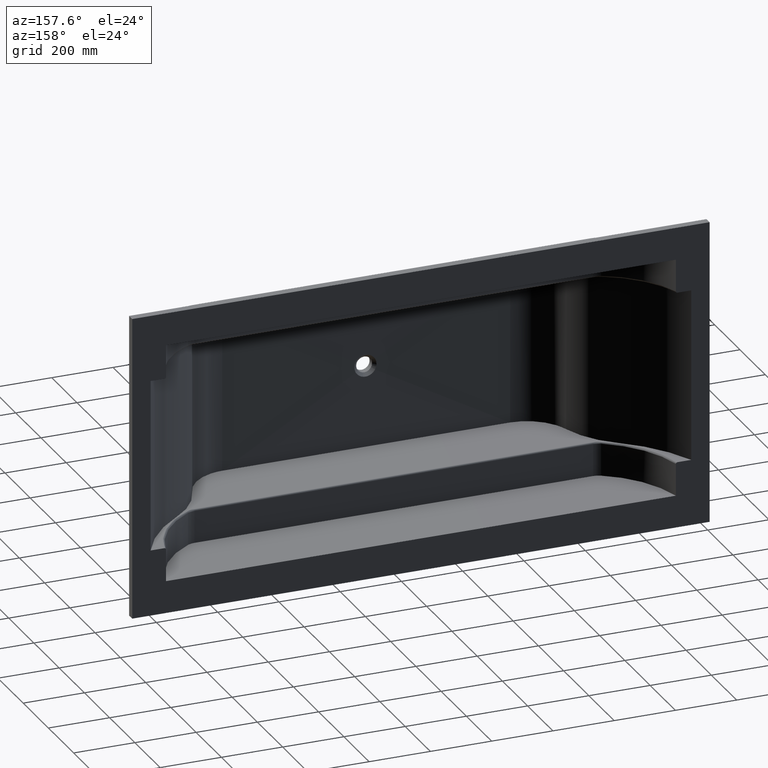
[diagram: clean part render]
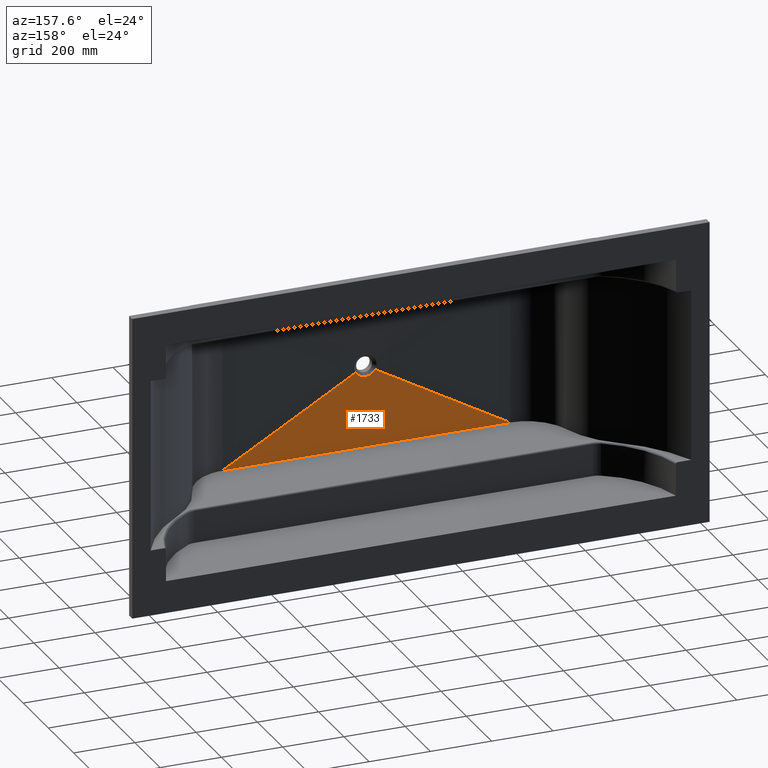
[diagram: same view with one face highlighted and labeled with its STEP entity id]
A machine part, auxiliary view. The second image highlights one B-rep face of the part: STEP entity #1733.
In plain terms, the highlighted planar face has unit normal (0, -0.9997, -0.0226).
Its self-contained STEP definition (entity closure, byte-faithful):
#77 = ORIENTED_EDGE ( 'NONE', *, *, #3188, .F. ) ;
#111 = DIRECTION ( 'NONE',  ( -0.8710262766823158000, -0.01111948438317850900, 0.4911105602570505200 ) ) ;
#188 = CARTESIAN_POINT ( 'NONE',  ( 1412.500000000005700, -419.0000000000000600, -760.0000000000000000 ) ) ;
#203 = CARTESIAN_POINT ( 'NONE',  ( 933.8095599632381400, -424.2079209995181900, -529.9834891879459100 ) ) ;
#386 = ORIENTED_EDGE ( 'NONE', *, *, #1924, .F. ) ;
#676 = CARTESIAN_POINT ( 'NONE',  ( 956.1925158644544400, -424.2447592089435500, -528.3564682716579500 ) ) ;
#922 = VERTEX_POINT ( 'NONE', #1062 ) ;
#928 = LINE ( 'NONE', #2775, #4196 ) ;
#990 = CARTESIAN_POINT ( 'NONE',  ( 915.9168369584053800, -424.4464645930708000, -519.4478138060341100 ) ) ;
#1008 = CARTESIAN_POINT ( 'NONE',  ( 965.2339255861430700, -424.3652985051307400, -523.0326493567307600 ) ) ;
#1051 = CARTESIAN_POINT ( 'NONE',  ( 917.1435332895891900, -424.4179712181139600, -520.7062711999666400 ) ) ;
#1062 = CARTESIAN_POINT ( 'NONE',  ( 973.9608987646641900, -424.5983715051320400, -512.7385918566710600 ) ) ;
#1135 = AXIS2_PLACEMENT_3D ( 'NONE', #4588, #2371, #3691 ) ;
#1138 = DIRECTION ( 'NONE',  ( -0.8710262766823158000, 0.01111948438317850900, -0.4911105602570505200 ) ) ;
#1294 = ORIENTED_EDGE ( 'NONE', *, *, #5005, .F. ) ;
#1358 = CARTESIAN_POINT ( 'NONE',  ( 472.5000000000029600, -419.0000000000000600, -759.9999999999998900 ) ) ;
#1473 = EDGE_CURVE ( 'NONE', #5400, #922, #928, .T. ) ;
#1476 = CARTESIAN_POINT ( 'NONE',  ( 921.1618801141343100, -424.3411205569387300, -524.1005087352080000 ) ) ;
#1491 = CARTESIAN_POINT ( 'NONE',  ( 919.7660744138620400, -424.3652985051305100, -523.0326493567312100 ) ) ;
#1495 = EDGE_LOOP ( 'NONE', ( #3918, #386, #77, #1294 ) ) ;
#1626 = VECTOR ( 'NONE', #2232, 1000.000000000000000 ) ;
#1733 = ADVANCED_FACE ( 'NONE', ( #4389 ), #2831, .F. ) ;
#1800 = CARTESIAN_POINT ( 'NONE',  ( 60.00000000000243700, -419.0000000000000600, -760.0000000000000000 ) ) ;
#1924 = EDGE_CURVE ( 'NONE', #2126, #5400, #2804, .T. ) ;
#1942 = CARTESIAN_POINT ( 'NONE',  ( 946.0056533152287600, -424.1878484834904300, -530.8700253124980000 ) ) ;
#2049 = CARTESIAN_POINT ( 'NONE',  ( 930.4505192675050000, -424.2306371355655300, -528.9801931791900000 ) ) ;
#2102 = CARTESIAN_POINT ( 'NONE',  ( 913.3794994590314200, -424.5146655531867200, -516.4356047342510000 ) ) ;
#2126 = VERTEX_POINT ( 'NONE', #1358 ) ;
#2232 = DIRECTION ( 'NONE',  ( 1.000000000000000000, -0.0000000000000000000, -0.0000000000000000000 ) ) ;
#2356 = CARTESIAN_POINT ( 'NONE',  ( 935.5255239520701000, -424.1993272180071100, -530.3630478713457700 ) ) ;
#2371 = DIRECTION ( 'NONE',  ( 0.0000000000000000000, -0.9997437795323199600, -0.02263570821582612500 ) ) ;
#2422 = CARTESIAN_POINT ( 'NONE',  ( 951.1904400367665200, -424.2079209995181900, -529.9834891879459100 ) ) ;
#2775 = CARTESIAN_POINT ( 'NONE',  ( 822.7243432327842400, -426.5290509374537500, -427.4669169291216200 ) ) ;
#2796 = CARTESIAN_POINT ( 'NONE',  ( 944.2528375050765100, -424.1849636725574400, -530.9974377953758400 ) ) ;
#2804 = LINE ( 'NONE', #1800, #1626 ) ;
#2815 = CARTESIAN_POINT ( 'NONE',  ( 940.7471624949283800, -424.1849636725576700, -530.9974377953758400 ) ) ;
#2831 = PLANE ( 'NONE',  #1135 ) ;
#2834 = CARTESIAN_POINT ( 'NONE',  ( 963.8381198858703600, -424.3411205569387300, -524.1005087352077700 ) ) ;
#2914 = CARTESIAN_POINT ( 'NONE',  ( 925.6288471398368100, -424.2782351544196300, -526.8779473464578600 ) ) ;
#2986 = CARTESIAN_POINT ( 'NONE',  ( 960.9067153818431300, -424.2975886121851700, -526.0231696284863600 ) ) ;
#3188 = EDGE_CURVE ( 'NONE', #5047, #2126, #3482, .T. ) ;
#3398 = CARTESIAN_POINT ( 'NONE',  ( 967.8564667104154800, -424.4179712181139600, -520.7062711999664100 ) ) ;
#3482 = LINE ( 'NONE', #5469, #4646 ) ;
#3678 = CARTESIAN_POINT ( 'NONE',  ( 969.0831630415992800, -424.4464645930710300, -519.4478138060337600 ) ) ;
#3691 = DIRECTION ( 'NONE',  ( 0.0000000000000000000, 0.02263570821582612500, -0.9997437795323199600 ) ) ;
#3808 = CARTESIAN_POINT ( 'NONE',  ( 912.1235864138350300, -424.5554098068998900, -514.6360668619215600 ) ) ;
#3918 = ORIENTED_EDGE ( 'NONE', *, *, #1473, .F. ) ;
#4103 = CARTESIAN_POINT ( 'NONE',  ( 911.0391012353402400, -424.5983715051320400, -512.7385918566711800 ) ) ;
#4192 = CARTESIAN_POINT ( 'NONE',  ( 973.9608987646641900, -424.5983715051320400, -512.7385918566710600 ) ) ;
#4196 = VECTOR ( 'NONE', #111, 1000.000000000000000 ) ;
#4304 = CARTESIAN_POINT ( 'NONE',  ( 971.6205005413891100, -424.5146655531980300, -516.4356047337569200 ) ) ;
#4311 = B_SPLINE_CURVE_WITH_KNOTS ( 'NONE', 3,
 ( #4192, #4663, #4304, #3678, #3398, #1008, #2834, #2986, #5547, #676, #4533, #2422, #5432, #1942, #2796, #2815, #5636, #2356, #203, #2049, #4985, #2914, #4609, #1476, #1491, #1051, #990, #2102, #3808, #4103 ),
 .UNSPECIFIED., .F., .F.,
 ( 4, 2, 2, 2, 2, 2, 2, 2, 2, 2, 2, 2, 2, 2, 4 ),
 ( 0.0000000000000000000, 0.08602813129796166300, 0.1550234427504201300, 0.2240187542028786200, 0.2930140656553375000, 0.3620093771077959600, 0.4310046885602544200, 0.5000000000127132700, 0.5689953114651722400, 0.6379906229176306500, 0.7069859343700891600, 0.7759812458225480200, 0.8449765572750069800, 0.9139718687274653900, 1.000000000000000000 ),
 .UNSPECIFIED. ) ;
#4389 = FACE_OUTER_BOUND ( 'NONE', #1495, .T. ) ;
#4533 = CARTESIAN_POINT ( 'NONE',  ( 954.5494807324996600, -424.2306371355655300, -528.9801931791898800 ) ) ;
#4588 = CARTESIAN_POINT ( 'NONE',  ( 60.00000000000243700, -419.0000000000000600, -760.0000000000000000 ) ) ;
#4609 = CARTESIAN_POINT ( 'NONE',  ( 924.0932846181617600, -424.2975886121853400, -526.0231696284864700 ) ) ;
#4646 = VECTOR ( 'NONE', #1138, 1000.000000000000000 ) ;
#4663 = CARTESIAN_POINT ( 'NONE',  ( 972.8764135869116700, -424.5554098069239900, -514.6360668608576800 ) ) ;
#4730 = CARTESIAN_POINT ( 'NONE',  ( 911.0391012353402400, -424.5983715051320400, -512.7385918566711800 ) ) ;
#4985 = CARTESIAN_POINT ( 'NONE',  ( 928.8074841355504500, -424.2447592089435500, -528.3564682716581700 ) ) ;
#5005 = EDGE_CURVE ( 'NONE', #922, #5047, #4311, .T. ) ;
#5047 = VERTEX_POINT ( 'NONE', #4730 ) ;
#5400 = VERTEX_POINT ( 'NONE', #188 ) ;
#5432 = CARTESIAN_POINT ( 'NONE',  ( 949.4744760479347900, -424.1993272180071100, -530.3630478713456600 ) ) ;
#5469 = CARTESIAN_POINT ( 'NONE',  ( 1062.275656767220400, -426.5290509374537500, -427.4669169291216200 ) ) ;
#5547 = CARTESIAN_POINT ( 'NONE',  ( 959.3711528601683100, -424.2782351544198600, -526.8779473464576300 ) ) ;
#5636 = CARTESIAN_POINT ( 'NONE',  ( 938.9943466847765900, -424.1878484834906500, -530.8700253124981100 ) ) ;